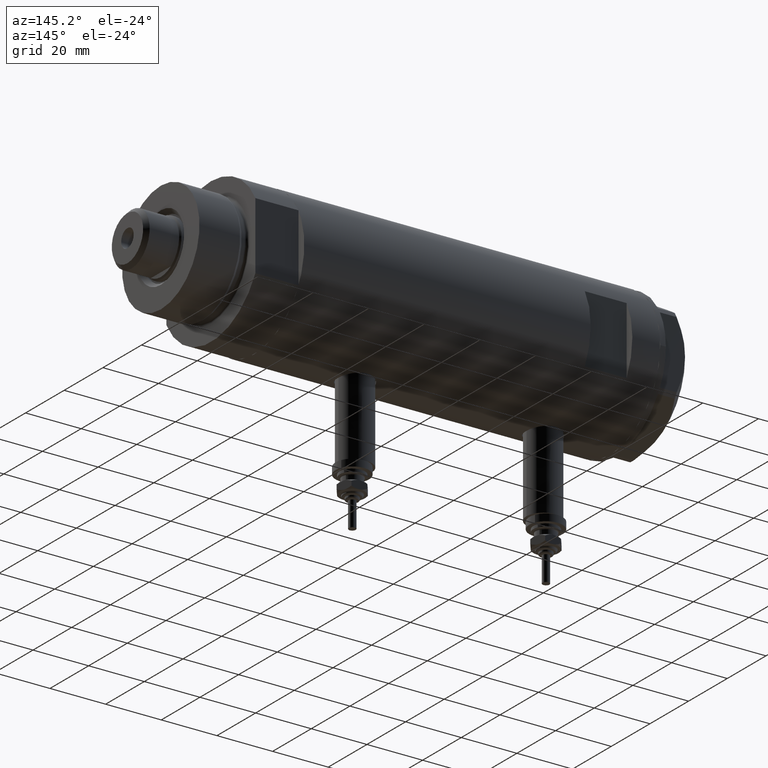
[diagram: clean part render]
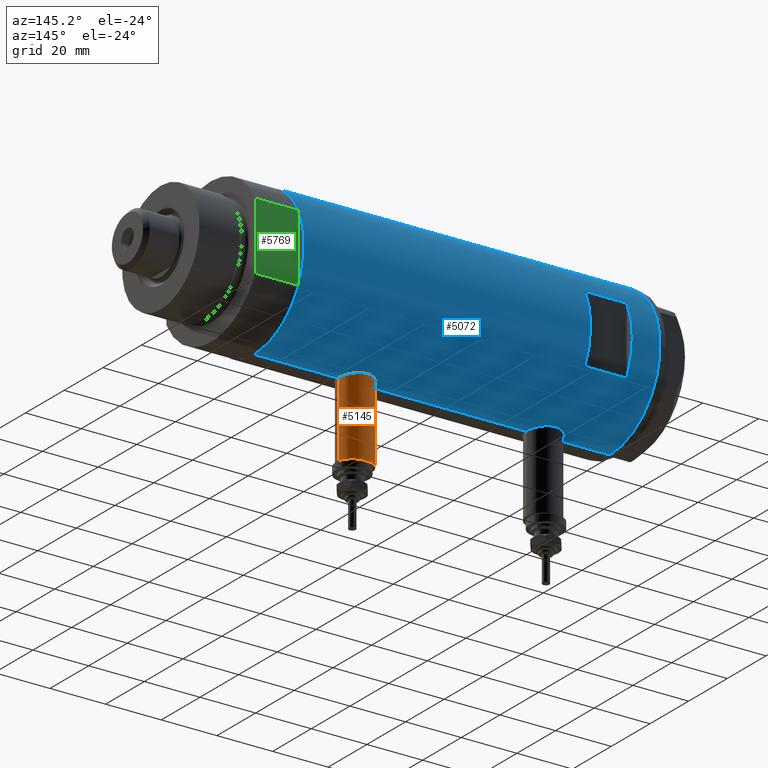
[diagram: same view with three faces highlighted in distinct colors, each labeled with its STEP entity id]
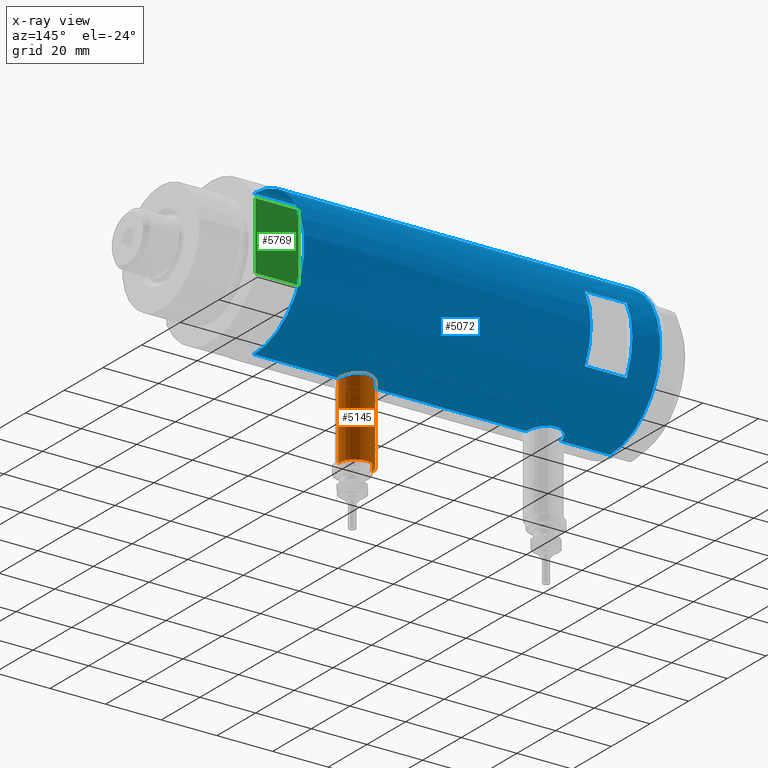
[diagram: x-ray of the same camera — body ghosted, the three highlighted faces saturated]
A machine part, auxiliary view with three faces highlighted in distinct colors.
The next image is the same camera in x-ray (body ghosted, the three faces saturated) — at least one of them is partly hidden behind the body in this view.
Their STEP definitions:

[orange] entity #5145 — the highlighted cylindrical surface (edge-blend (fillet) strip) has radius 6 mm, axis along (0, 0, 1).
#223 = DIRECTION ( 'NONE',  ( 1.000000000000000000, -0.000000000000000000, -0.000000000000000000 ) ) ;
#399 = VERTEX_POINT ( 'NONE', #2388 ) ;
#663 = EDGE_CURVE ( 'NONE', #4606, #4119, #2244, .T. ) ;
#666 = VERTEX_POINT ( 'NONE', #4201 ) ;
#690 = DIRECTION ( 'NONE',  ( 1.000000000000000000, -0.000000000000000000, -0.000000000000000000 ) ) ;
#876 = VECTOR ( 'NONE', #690, 1000.000000000000000 ) ;
#878 = DIRECTION ( 'NONE',  ( 0.000000000000000000, 0.000000000000000000, -1.000000000000000000 ) ) ;
#1023 = ORIENTED_EDGE ( 'NONE', *, *, #663, .T. ) ;
#1032 = CARTESIAN_POINT ( 'NONE',  ( -24.80000000000000426, 0.000000000000000000, -27.65000000000000924 ) ) ;
#1213 = CIRCLE ( 'NONE', #2214, 6.000000000000001776 ) ;
#1474 = CARTESIAN_POINT ( 'NONE',  ( -24.80000000000000426, 7.347880794884123680E-16, -21.65000000000000213 ) ) ;
#1568 = VECTOR ( 'NONE', #223, 1000.000000000000000 ) ;
#1597 = EDGE_CURVE ( 'NONE', #4119, #666, #3397, .T. ) ;
#1676 = ORIENTED_EDGE ( 'NONE', *, *, #3480, .F. ) ;
#1695 = ORIENTED_EDGE ( 'NONE', *, *, #1597, .T. ) ;
#1801 = ORIENTED_EDGE ( 'NONE', *, *, #5708, .F. ) ;
#1873 = CARTESIAN_POINT ( 'NONE',  ( -53.40000000000000568, 0.000000000000000000, -27.65000000000000924 ) ) ;
#1913 = LINE ( 'NONE', #3841, #876 ) ;
#2214 = AXIS2_PLACEMENT_3D ( 'NONE', #1873, #3415, #2961 ) ;
#2244 = LINE ( 'NONE', #5663, #1568 ) ;
#2388 = CARTESIAN_POINT ( 'NONE',  ( -53.40000000000000568, 0.000000000000000000, -33.65000000000001279 ) ) ;
#2449 = CARTESIAN_POINT ( 'NONE',  ( -53.40000000000000568, 7.347880794884123680E-16, -21.65000000000000213 ) ) ;
#2956 = DIRECTION ( 'NONE',  ( -1.000000000000000000, 0.000000000000000000, 0.000000000000000000 ) ) ;
#2961 = DIRECTION ( 'NONE',  ( 0.000000000000000000, 0.000000000000000000, 1.000000000000000000 ) ) ;
#3265 = FACE_OUTER_BOUND ( 'NONE', #5521, .T. ) ;
#3397 = CIRCLE ( 'NONE', #4922, 6.000000000000001776 ) ;
#3415 = DIRECTION ( 'NONE',  ( -1.000000000000000000, 0.000000000000000000, 0.000000000000000000 ) ) ;
#3480 = EDGE_CURVE ( 'NONE', #399, #666, #1913, .T. ) ;
#3841 = CARTESIAN_POINT ( 'NONE',  ( -53.40000000000000568, 0.000000000000000000, -33.65000000000001279 ) ) ;
#4067 = AXIS2_PLACEMENT_3D ( 'NONE', #5702, #5244, #878 ) ;
#4119 = VERTEX_POINT ( 'NONE', #1474 ) ;
#4201 = CARTESIAN_POINT ( 'NONE',  ( -24.80000000000000426, 0.000000000000000000, -33.65000000000001279 ) ) ;
#4606 = VERTEX_POINT ( 'NONE', #2449 ) ;
#4905 = DIRECTION ( 'NONE',  ( 0.000000000000000000, 0.000000000000000000, 1.000000000000000000 ) ) ;
#4922 = AXIS2_PLACEMENT_3D ( 'NONE', #1032, #2956, #4905 ) ;
#5145 = ADVANCED_FACE ( 'NONE', ( #3265 ), #5760, .T. ) ;
#5244 = DIRECTION ( 'NONE',  ( 1.000000000000000000, -0.000000000000000000, -0.000000000000000000 ) ) ;
#5521 = EDGE_LOOP ( 'NONE', ( #1801, #1023, #1695, #1676 ) ) ;
#5663 = CARTESIAN_POINT ( 'NONE',  ( -53.40000000000000568, 7.347880794884122694E-16, -21.65000000000000568 ) ) ;
#5702 = CARTESIAN_POINT ( 'NONE',  ( -53.40000000000000568, 0.000000000000000000, -27.65000000000000924 ) ) ;
#5708 = EDGE_CURVE ( 'NONE', #4606, #399, #1213, .T. ) ;
#5760 = CYLINDRICAL_SURFACE ( 'NONE', #4067, 6.000000000000005329 ) ;

[blue] entity #5072 — the highlighted cylindrical surface (partial cylindrical patch) has radius 26 mm, axis along (-1, -0, 0).
#5 = CARTESIAN_POINT ( 'NONE',  ( -25.99009688862344092, 0.8219492608955323298, 46.15915939226576370 ) ) ;
#17 = CARTESIAN_POINT ( 'NONE',  ( 25.38132706741445332, 5.649034551923782566, -29.70731952814044874 ) ) ;
#43 = CARTESIAN_POINT ( 'NONE',  ( -26.00000000000000355, 3.184077527325983904E-15, -33.90000000000001279 ) ) ;
#78 = DIRECTION ( 'NONE',  ( -1.000000000000000000, -5.329070518200751394E-15, 0.000000000000000000 ) ) ;
#81 = CARTESIAN_POINT ( 'NONE',  ( -25.99759026373432391, 0.4091325989570628874, -33.88999890044899388 ) ) ;
#95 = CARTESIAN_POINT ( 'NONE',  ( -25.24766879991037172, 6.209837761082653174, 40.76849569029695886 ) ) ;
#116 = ORIENTED_EDGE ( 'NONE', *, *, #1956, .F. ) ;
#144 = VERTEX_POINT ( 'NONE', #5836 ) ;
#150 = CARTESIAN_POINT ( 'NONE',  ( -26.00000000000000355, 9.891741702313250758E-16, -21.40000000000000568 ) ) ;
#180 = CARTESIAN_POINT ( 'NONE',  ( -25.36894112891957676, 5.694149517195238097, -30.23482505198309056 ) ) ;
#201 = CARTESIAN_POINT ( 'NONE',  ( 0.000000000000000000, 0.000000000000000000, -63.95000000000000995 ) ) ;
#207 = CARTESIAN_POINT ( 'NONE',  ( -25.85406084573622110, 2.777003695811654183, -22.03587158673905222 ) ) ;
#218 = CARTESIAN_POINT ( 'NONE',  ( -25.99759026373432036, 0.4091325989570642196, 33.71000109955100754 ) ) ;
#231 = FACE_BOUND ( 'NONE', #3866, .T. ) ;
#258 = CARTESIAN_POINT ( 'NONE',  ( 25.20855488770172315, 6.367749707222637667, 48.42002223040957887 ) ) ;
#276 = AXIS2_PLACEMENT_3D ( 'NONE', #1550, #3477, #4951 ) ;
#292 = DIRECTION ( 'NONE',  ( 0.000000000000000000, 0.000000000000000000, 1.000000000000000000 ) ) ;
#317 = CARTESIAN_POINT ( 'NONE',  ( 26.00000000000000355, 0.000000000000000000, -63.95000000000000995 ) ) ;
#324 = DIRECTION ( 'NONE',  ( 0.000000000000000000, 0.000000000000000000, 1.000000000000000000 ) ) ;
#443 = VECTOR ( 'NONE', #999, 1000.000000000000000 ) ;
#470 = CARTESIAN_POINT ( 'NONE',  ( 25.72923282622328855, 3.765147152416742138, -31.25485575784708203 ) ) ;
#483 = CARTESIAN_POINT ( 'NONE',  ( -25.72105193281917224, 3.813738527046911297, 44.91833691099433423 ) ) ;
#496 = CARTESIAN_POINT ( 'NONE',  ( -25.57167265924275412, 4.701795585128873967, -31.77276288310035213 ) ) ;
#497 = CARTESIAN_POINT ( 'NONE',  ( -12.12435565298214080, 23.00000000000000355, 38.94999999999999574 ) ) ;
#505 = CARTESIAN_POINT ( 'NONE',  ( 24.89484527721569052, 7.499778575171893280, -25.24550805482937932 ) ) ;
#558 = ORIENTED_EDGE ( 'NONE', *, *, #2754, .T. ) ;
#631 = CARTESIAN_POINT ( 'NONE',  ( -25.23766275406408965, 6.249830297096024445, -27.23808095444882582 ) ) ;
#648 = DIRECTION ( 'NONE',  ( 0.000000000000000000, 0.000000000000000000, 1.000000000000000000 ) ) ;
#681 = CARTESIAN_POINT ( 'NONE',  ( -25.98057228346870673, 1.024901789261881913, 33.78119414145175625 ) ) ;
#721 = CARTESIAN_POINT ( 'NONE',  ( 25.41763780493359803, 5.474943943663455492, 49.58176313788934664 ) ) ;
#793 = VECTOR ( 'NONE', #5399, 1000.000000000000000 ) ;
#803 = CARTESIAN_POINT ( 'NONE',  ( 12.12435565298214080, 23.00000000000000355, 53.94999999999999574 ) ) ;
#838 = VERTEX_POINT ( 'NONE', #5767 ) ;
#900 = CIRCLE ( 'NONE', #4254, 26.00000000000000355 ) ;
#931 = CARTESIAN_POINT ( 'NONE',  ( 25.30960479024497900, 5.958491152160520166, -29.33139677679963953 ) ) ;
#946 = ORIENTED_EDGE ( 'NONE', *, *, #3525, .F. ) ;
#956 = VERTEX_POINT ( 'NONE', #497 ) ;
#958 = CARTESIAN_POINT ( 'NONE',  ( 26.00000000000001776, 0.4983968644076017251, -32.25000000000001421 ) ) ;
#970 = CARTESIAN_POINT ( 'NONE',  ( 24.90951684770588059, 7.451587374037537792, 43.46604395478804861 ) ) ;
#991 = CARTESIAN_POINT ( 'NONE',  ( 24.90976107960111818, 7.450765568638821890, -23.76117130648535891 ) ) ;
#999 = DIRECTION ( 'NONE',  ( 0.000000000000000000, 0.000000000000000000, 1.000000000000000000 ) ) ;
#1024 = EDGE_CURVE ( 'NONE', #1947, #5714, #3455, .T. ) ;
#1025 = CARTESIAN_POINT ( 'NONE',  ( 25.01140519645288407, 7.101774040639619479, -27.17392235700823733 ) ) ;
#1034 = CARTESIAN_POINT ( 'NONE',  ( -25.57189498399055338, 4.707763994471528157, 44.08090281055548587 ) ) ;
#1035 = VERTEX_POINT ( 'NONE', #4386 ) ;
#1093 = CARTESIAN_POINT ( 'NONE',  ( -25.24784248027030031, 6.209126813737962713, 39.12731838311943022 ) ) ;
#1108 = DIRECTION ( 'NONE',  ( -0.000000000000000000, -0.000000000000000000, -1.000000000000000000 ) ) ;
#1120 = CARTESIAN_POINT ( 'NONE',  ( 25.41763780493360514, 5.474943943663459933, -19.61823686211066686 ) ) ;
#1121 = CARTESIAN_POINT ( 'NONE',  ( -25.42927140605240766, 5.422776733968210472, -24.51556003986717513 ) ) ;
#1129 = CARTESIAN_POINT ( 'NONE',  ( -25.72087293759780380, 3.814831448865741770, 34.98261705172143365 ) ) ;
#1131 = CARTESIAN_POINT ( 'NONE',  ( 25.27545867390325185, 6.096774941222090405, 48.82477406957965371 ) ) ;
#1142 = EDGE_LOOP ( 'NONE', ( #3912, #558, #3761, #2543, #5860, #5295, #946, #116, #4638, #3662, #4941, #4455 ) ) ;
#1153 = CARTESIAN_POINT ( 'NONE',  ( 25.27545867390324830, 6.096774941222096622, -20.37522593042036334 ) ) ;
#1167 = CARTESIAN_POINT ( 'NONE',  ( -25.85449082491264861, 2.772892880050687126, 34.33390702514679305 ) ) ;
#1172 = CARTESIAN_POINT ( 'NONE',  ( 25.52590365620542912, 4.955152228772151446, 50.10123727588237585 ) ) ;
#1204 = CARTESIAN_POINT ( 'NONE',  ( -25.52275868012767646, 4.960454986366448438, 36.14238370593368188 ) ) ;
#1227 = CARTESIAN_POINT ( 'NONE',  ( -25.81251897318926680, 3.135439098787736523, -22.22800821914827907 ) ) ;
#1238 = CARTESIAN_POINT ( 'NONE',  ( -25.81206132723605506, 3.139065735901517495, 34.53021230639124894 ) ) ;
#1243 = CARTESIAN_POINT ( 'NONE',  ( -26.00000000000000355, 9.891741702313250758E-16, -21.40000000000000568 ) ) ;
#1259 = CARTESIAN_POINT ( 'NONE',  ( -26.00000000000000355, 3.184081677783118585E-15, 63.95000000000000995 ) ) ;
#1278 = CARTESIAN_POINT ( 'NONE',  ( 26.00000000000000355, 0.4983968644076020582, 36.95000000000000284 ) ) ;
#1392 = VECTOR ( 'NONE', #292, 1000.000000000000000 ) ;
#1415 = CARTESIAN_POINT ( 'NONE',  ( 25.11254978876590016, 6.737777305585156640, -28.08025351746412213 ) ) ;
#1452 = CARTESIAN_POINT ( 'NONE',  ( -25.92257874449351007, 2.014648337067150408, 45.86996418363678174 ) ) ;
#1470 = CARTESIAN_POINT ( 'NONE',  ( 24.90951684770588415, 7.451587374037533351, -25.73395604521198621 ) ) ;
#1482 = CARTESIAN_POINT ( 'NONE',  ( -25.33346170681504717, 5.849967696906719361, 42.15947052099510017 ) ) ;
#1501 = CARTESIAN_POINT ( 'NONE',  ( 25.11550258961939619, 6.725017566862034002, -21.42071522193981181 ) ) ;
#1550 = CARTESIAN_POINT ( 'NONE',  ( 0.000000000000000000, 0.000000000000000000, -63.95000000000000995 ) ) ;
#1561 = CARTESIAN_POINT ( 'NONE',  ( 25.31017500740586357, 5.951503630041866444, -20.17950407362598853 ) ) ;
#1586 = VECTOR ( 'NONE', #648, 1000.000000000000000 ) ;
#1611 = CARTESIAN_POINT ( 'NONE',  ( 25.11550258961939974, 6.725017566862028673, 47.77928477806020169 ) ) ;
#1628 = CARTESIAN_POINT ( 'NONE',  ( 25.92799636947105313, 1.948138538329398317, 37.20322312211785487 ) ) ;
#1638 = CARTESIAN_POINT ( 'NONE',  ( -25.67095236150574067, 4.133649689219789813, -22.94464771725742125 ) ) ;
#1649 = CARTESIAN_POINT ( 'NONE',  ( -25.36894112891956965, 5.694149517195234544, 37.36517494801692862 ) ) ;
#1650 = CARTESIAN_POINT ( 'NONE',  ( 25.97197502027376004, 1.230965554787593952, 51.85240824498373513 ) ) ;
#1670 = CARTESIAN_POINT ( 'NONE',  ( -25.49884629689154636, 5.081547904122037274, -31.29439805696091526 ) ) ;
#1678 = EDGE_CURVE ( 'NONE', #3145, #1035, #4903, .T. ) ;
#1691 = DIRECTION ( 'NONE',  ( 0.000000000000000000, 0.000000000000000000, 1.000000000000000000 ) ) ;
#1699 = CARTESIAN_POINT ( 'NONE',  ( 26.00000000000001066, 0.2455784580650491045, -17.25000000000000355 ) ) ;
#1700 = CARTESIAN_POINT ( 'NONE',  ( -25.72105193281916513, 3.813738527046907745, -22.68166308900567785 ) ) ;
#1716 = DIRECTION ( 'NONE',  ( 0.000000000000000000, 0.000000000000000000, 1.000000000000000000 ) ) ;
#1759 = DIRECTION ( 'NONE',  ( 1.000000000000000000, 0.000000000000000000, 0.000000000000000000 ) ) ;
#1910 = CARTESIAN_POINT ( 'NONE',  ( 0.000000000000000000, 0.000000000000000000, 53.94999999999999574 ) ) ;
#1921 = LINE ( 'NONE', #2856, #3526 ) ;
#1947 = VERTEX_POINT ( 'NONE', #803 ) ;
#1956 = EDGE_CURVE ( 'NONE', #4811, #4112, #2792, .T. ) ;
#1976 = VERTEX_POINT ( 'NONE', #1259 ) ;
#1980 = CARTESIAN_POINT ( 'NONE',  ( 25.00820649268565532, 7.115348876445588111, -22.32815999524549611 ) ) ;
#2008 = CARTESIAN_POINT ( 'NONE',  ( 25.92799636947105668, 1.948138538329396319, -31.99677687788214797 ) ) ;
#2023 = CARTESIAN_POINT ( 'NONE',  ( 24.95233689475078975, 7.306396477445178839, 42.73896186853335877 ) ) ;
#2024 = B_SPLINE_CURVE_WITH_KNOTS ( 'NONE', 3,
 ( #3581, #1278, #3169, #5981, #1628, #3200, #6084, #3552, #5542, #5612, #6046, #4691, #5936, #4376, #6299, #5820, #2446, #3380, #5335, #5881, #2023, #970, #3020, #5005, #2113, #4028, #6010, #5536, #1611, #5083, #258, #1131, #5972, #3541, #721, #1172, #2613, #2140, #4128, #4977, #6074, #1650, #5463, #4537, #2645, #5603 ),
 .UNSPECIFIED., .F., .F.,
 ( 4, 2, 2, 2, 2, 2, 2, 2, 2, 2, 2, 2, 2, 2, 2, 2, 2, 2, 2, 2, 2, 2, 4 ),
 ( 2.323866739619147150E-19, 0.001473395154583068958, 0.002210092731874605497, 0.002946790309166141819, 0.004420185463749206657, 0.005156883041040739510, 0.005893580618332274097, 0.007366975772915325057, 0.008840370927498376885, 0.009577068504789901932, 0.01031376608208142698, 0.01178716123666447707, 0.01326055639124752716, 0.01473395154583057726, 0.01547064912312210404, 0.01620734670041363082, 0.01694404427770515587, 0.01768074185499668438, 0.01915413700957973447, 0.02062753216416278457, 0.02210092731874583813, 0.02283762489603735971, 0.02357432247332888128 ),
 .UNSPECIFIED. ) ;
#2042 = CARTESIAN_POINT ( 'NONE',  ( 26.00000000000000355, -3.975025925197986111E-20, -17.25000000000000000 ) ) ;
#2113 = CARTESIAN_POINT ( 'NONE',  ( 24.90976107960111818, 7.450765568638821890, 45.43882869351466525 ) ) ;
#2123 = DIRECTION ( 'NONE',  ( 1.000000000000000000, 0.000000000000000000, 0.000000000000000000 ) ) ;
#2140 = CARTESIAN_POINT ( 'NONE',  ( 25.72868876879096689, 3.768709330223694920, 50.95267486870066165 ) ) ;
#2178 = EDGE_CURVE ( 'NONE', #2638, #838, #4185, .T. ) ;
#2238 = CARTESIAN_POINT ( 'NONE',  ( -25.45277932469921822, 5.307477387851097461, 36.64327199834690418 ) ) ;
#2255 = EDGE_CURVE ( 'NONE', #4844, #4811, #2024, .T. ) ;
#2301 = CARTESIAN_POINT ( 'NONE',  ( 26.00000000000000355, -3.975025925197986111E-20, 51.95000000000000284 ) ) ;
#2320 = AXIS2_PLACEMENT_3D ( 'NONE', #201, #1691, #2123 ) ;
#2405 = CARTESIAN_POINT ( 'NONE',  ( 25.48882460966380492, 5.133289275481214275, -30.22343523597908188 ) ) ;
#2426 = CARTESIAN_POINT ( 'NONE',  ( -25.59680708126580129, 4.563450671387943025, -31.92543949979970108 ) ) ;
#2431 = VERTEX_POINT ( 'NONE', #2864 ) ;
#2441 = CARTESIAN_POINT ( 'NONE',  ( -25.23766275406409321, 6.249830297096026221, 40.36191904555118271 ) ) ;
#2446 = CARTESIAN_POINT ( 'NONE',  ( 25.11254978876589661, 6.737777305585160192, 41.11974648253589493 ) ) ;
#2485 = CIRCLE ( 'NONE', #2989, 26.00000000000000355 ) ;
#2491 = CARTESIAN_POINT ( 'NONE',  ( -25.95208098418916975, 1.628413954368980843, -33.69806792170715681 ) ) ;
#2513 = CARTESIAN_POINT ( 'NONE',  ( -25.27696731428695998, 6.089059008147561514, 41.37416306959482881 ) ) ;
#2525 = CARTESIAN_POINT ( 'NONE',  ( -25.72087293759780735, 3.814831448865741326, -32.61738294827859619 ) ) ;
#2533 = CARTESIAN_POINT ( 'NONE',  ( -25.27696731428695642, 6.089059008147562402, -26.22583693040519037 ) ) ;
#2543 = ORIENTED_EDGE ( 'NONE', *, *, #6127, .T. ) ;
#2554 = EDGE_CURVE ( 'NONE', #6316, #4844, #3125, .T. ) ;
#2566 = CARTESIAN_POINT ( 'NONE',  ( -25.28915991580759837, 6.038390257328908994, -26.02447348853095122 ) ) ;
#2597 = CARTESIAN_POINT ( 'NONE',  ( -26.00000000000000711, 0.4145874687851189844, -21.40000000000000924 ) ) ;
#2609 = CARTESIAN_POINT ( 'NONE',  ( -25.98789693408479451, 0.8193301824841956460, 33.75051019734654290 ) ) ;
#2613 = CARTESIAN_POINT ( 'NONE',  ( 25.59685363299823280, 4.579266302355747165, 50.40972068102655612 ) ) ;
#2634 = CARTESIAN_POINT ( 'NONE',  ( -25.92257874449350297, 2.014648337067150408, -21.73003581636323389 ) ) ;
#2638 = VERTEX_POINT ( 'NONE', #1243 ) ;
#2643 = CARTESIAN_POINT ( 'NONE',  ( -25.31518616157687163, 5.930210831981637121, 37.93412882792974727 ) ) ;
#2645 = CARTESIAN_POINT ( 'NONE',  ( 25.99999999999999645, 0.2455784580650500204, 51.94999999999998863 ) ) ;
#2659 = CARTESIAN_POINT ( 'NONE',  ( 25.59685363299822569, 4.579266302355748053, -18.79027931897347514 ) ) ;
#2673 = CARTESIAN_POINT ( 'NONE',  ( -25.99999999999999289, 0.2043916521039015888, 33.70000000000000284 ) ) ;
#2705 = CARTESIAN_POINT ( 'NONE',  ( -25.28673619335055278, 6.048783215285168602, 38.32449009651820404 ) ) ;
#2749 = ORIENTED_EDGE ( 'NONE', *, *, #1024, .F. ) ;
#2754 = EDGE_CURVE ( 'NONE', #2431, #838, #5782, .T. ) ;
#2778 = ORIENTED_EDGE ( 'NONE', *, *, #5509, .F. ) ;
#2792 = LINE ( 'NONE', #317, #5031 ) ;
#2856 = CARTESIAN_POINT ( 'NONE',  ( -12.12435565298214080, 23.00000000000000355, -63.95000000000000995 ) ) ;
#2864 = CARTESIAN_POINT ( 'NONE',  ( -26.00000000000000355, 3.184081677783118585E-15, -63.95000000000000995 ) ) ;
#2898 = CARTESIAN_POINT ( 'NONE',  ( -25.85406084573620689, 2.777003695811653738, 45.56412841326093854 ) ) ;
#2919 = CARTESIAN_POINT ( 'NONE',  ( 24.96662810169869218, 7.257932614256870529, -22.79702690473265392 ) ) ;
#2929 = CARTESIAN_POINT ( 'NONE',  ( -25.90661719257679252, 2.209805098346976138, 45.79988745781523107 ) ) ;
#2949 = CARTESIAN_POINT ( 'NONE',  ( 25.17636585680006078, 6.493453152855879651, -20.98900750337198318 ) ) ;
#2958 = CARTESIAN_POINT ( 'NONE',  ( -25.31738333113901973, 5.918941409682879851, 41.96757922472325220 ) ) ;
#2984 = CARTESIAN_POINT ( 'NONE',  ( -25.28915991580759837, 6.038390257328908106, 41.57552651146907863 ) ) ;
#2989 = AXIS2_PLACEMENT_3D ( 'NONE', #6080, #324, #1759 ) ;
#3001 = CARTESIAN_POINT ( 'NONE',  ( 25.89067367629245808, 2.424883365422559223, -17.63594795494831402 ) ) ;
#3002 = CARTESIAN_POINT ( 'NONE',  ( -25.52242378584899640, 4.965907353613392416, -23.83280397078263491 ) ) ;
#3014 = CARTESIAN_POINT ( 'NONE',  ( -25.81251897318925614, 3.135439098787738743, 45.37199178085171525 ) ) ;
#3020 = CARTESIAN_POINT ( 'NONE',  ( 24.89484527721569762, 7.499778575171895945, 43.95449194517064484 ) ) ;
#3028 = CARTESIAN_POINT ( 'NONE',  ( -25.81206132723605151, 3.139065735901513943, -33.06978769360876669 ) ) ;
#3040 = CARTESIAN_POINT ( 'NONE',  ( 25.20855488770173380, 6.367749707222643885, -20.77997776959044174 ) ) ;
#3041 = CARTESIAN_POINT ( 'NONE',  ( -25.24766879991036816, 6.209837761082655838, -26.83150430970304257 ) ) ;
#3052 = CARTESIAN_POINT ( 'NONE',  ( -25.57167265924276123, 4.701795585128874855, 35.82723711689968837 ) ) ;
#3073 = CARTESIAN_POINT ( 'NONE',  ( 25.93077501166307641, 1.957027822413550888, -17.49302141437590663 ) ) ;
#3125 = LINE ( 'NONE', #3573, #1586 ) ;
#3145 = VERTEX_POINT ( 'NONE', #5278 ) ;
#3148 = CARTESIAN_POINT ( 'NONE',  ( -25.57189498399056049, 4.707763994471527269, -23.51909718944452976 ) ) ;
#3169 = CARTESIAN_POINT ( 'NONE',  ( 25.98569222077104257, 0.9879514382926377625, 36.99918153312438562 ) ) ;
#3200 = CARTESIAN_POINT ( 'NONE',  ( 25.88814720404043257, 2.420758939209243898, 37.34711713171546421 ) ) ;
#3286 = CARTESIAN_POINT ( 'NONE',  ( 26.00000000000000355, 2.393127611988522640E-16, 36.95000000000000284 ) ) ;
#3358 = DIRECTION ( 'NONE',  ( 1.000000000000000000, -5.329070518200751394E-15, 0.000000000000000000 ) ) ;
#3380 = CARTESIAN_POINT ( 'NONE',  ( 25.03487248886524696, 7.018875226450792759, 41.79576782607938412 ) ) ;
#3388 = CARTESIAN_POINT ( 'NONE',  ( -25.99999999999999289, 0.2043916521039002843, -33.90000000000000568 ) ) ;
#3399 = CARTESIAN_POINT ( 'NONE',  ( 25.94484652078418208, 1.709678645892019899, -32.05665346759175804 ) ) ;
#3421 = CARTESIAN_POINT ( 'NONE',  ( -25.92432690655986960, 2.018143994254072648, -33.57929422822715537 ) ) ;
#3434 = CARTESIAN_POINT ( 'NONE',  ( 25.52465069878074999, 4.952713637311402906, -30.38744860815256388 ) ) ;
#3454 = CARTESIAN_POINT ( 'NONE',  ( 0.000000000000000000, 0.000000000000000000, 38.94999999999999574 ) ) ;
#3455 = LINE ( 'NONE', #3512, #3591 ) ;
#3477 = DIRECTION ( 'NONE',  ( 0.000000000000000000, 0.000000000000000000, 1.000000000000000000 ) ) ;
#3512 = CARTESIAN_POINT ( 'NONE',  ( 12.12435565298214080, 23.00000000000000355, -63.95000000000000995 ) ) ;
#3525 = EDGE_CURVE ( 'NONE', #4112, #1976, #2485, .T. ) ;
#3526 = VECTOR ( 'NONE', #4807, 1000.000000000000000 ) ;
#3533 = LINE ( 'NONE', #5424, #793 ) ;
#3541 = CARTESIAN_POINT ( 'NONE',  ( 25.38117076385347914, 5.641057083563588925, 49.39856579741849174 ) ) ;
#3552 = CARTESIAN_POINT ( 'NONE',  ( 25.78922176490237561, 3.335318700939509107, 37.71449431233524052 ) ) ;
#3559 = ORIENTED_EDGE ( 'NONE', *, *, #4030, .F. ) ;
#3561 = CARTESIAN_POINT ( 'NONE',  ( 25.78997056644824681, 3.329333406239041615, -18.01165191566153823 ) ) ;
#3562 = CARTESIAN_POINT ( 'NONE',  ( -25.43062364804612230, 5.412314182902756343, -30.78227648580932652 ) ) ;
#3573 = CARTESIAN_POINT ( 'NONE',  ( 26.00000000000000355, 0.000000000000000000, -63.95000000000000995 ) ) ;
#3581 = CARTESIAN_POINT ( 'NONE',  ( 26.00000000000000355, 2.393127611988522640E-16, 36.95000000000000284 ) ) ;
#3591 = VECTOR ( 'NONE', #1108, 1000.000000000000000 ) ;
#3602 = LINE ( 'NONE', #5084, #3934 ) ;
#3623 = CARTESIAN_POINT ( 'NONE',  ( -25.38675822915648084, 5.615881323213569587, -24.87693218337989975 ) ) ;
#3662 = ORIENTED_EDGE ( 'NONE', *, *, #2554, .F. ) ;
#3722 = DIRECTION ( 'NONE',  ( 0.000000000000000000, 0.000000000000000000, 1.000000000000000000 ) ) ;
#3761 = ORIENTED_EDGE ( 'NONE', *, *, #2178, .F. ) ;
#3812 = CARTESIAN_POINT ( 'NONE',  ( 25.59528664075984139, 4.573671112500301561, -30.69909503516727156 ) ) ;
#3847 = CARTESIAN_POINT ( 'NONE',  ( 25.78922176490238627, 3.335318700939508663, -31.48550568766476232 ) ) ;
#3866 = EDGE_LOOP ( 'NONE', ( #3559, #2749, #2778, #4488 ) ) ;
#3904 = CARTESIAN_POINT ( 'NONE',  ( 25.08669247833292104, 6.831361936037323446, -21.64462260596211252 ) ) ;
#3912 = ORIENTED_EDGE ( 'NONE', *, *, #4056, .T. ) ;
#3925 = CARTESIAN_POINT ( 'NONE',  ( 12.12435565298213724, 23.00000000000000355, 38.94999999999999574 ) ) ;
#3934 = VECTOR ( 'NONE', #1716, 1000.000000000000000 ) ;
#3941 = CARTESIAN_POINT ( 'NONE',  ( 26.00000000000000355, 6.604469597105595072E-16, -32.25000000000000000 ) ) ;
#3954 = CARTESIAN_POINT ( 'NONE',  ( -25.42927140605241121, 5.422776733968213136, 43.08443996013281918 ) ) ;
#3969 = CARTESIAN_POINT ( 'NONE',  ( -25.85449082491264861, 2.772892880050691122, -33.26609297485325101 ) ) ;
#3988 = CARTESIAN_POINT ( 'NONE',  ( -25.23757896588370286, 6.250168635417627350, 39.54324691589501128 ) ) ;
#4028 = CARTESIAN_POINT ( 'NONE',  ( 24.96662810169870284, 7.257932614256869641, 46.40297309526737024 ) ) ;
#4030 = EDGE_CURVE ( 'NONE', #5714, #956, #4842, .T. ) ;
#4050 = CARTESIAN_POINT ( 'NONE',  ( -25.38875076695535782, 5.605452563035137281, -30.42185900824106426 ) ) ;
#4056 = EDGE_CURVE ( 'NONE', #3145, #2431, #5883, .T. ) ;
#4063 = CARTESIAN_POINT ( 'NONE',  ( -25.38875076695534716, 5.605452563035134617, 37.17814099175895848 ) ) ;
#4086 = CARTESIAN_POINT ( 'NONE',  ( -25.45277932469921467, 5.307477387851098349, -30.95672800165311500 ) ) ;
#4093 = CARTESIAN_POINT ( 'NONE',  ( -25.43062364804612230, 5.412314182902753679, 36.81772351419071043 ) ) ;
#4112 = VERTEX_POINT ( 'NONE', #6107 ) ;
#4113 = CARTESIAN_POINT ( 'NONE',  ( 25.97197502027376004, 1.230965554787594396, -17.34759175501625350 ) ) ;
#4115 = CARTESIAN_POINT ( 'NONE',  ( -25.96182217530153480, 1.422664245316465736, -21.56064726907610307 ) ) ;
#4128 = CARTESIAN_POINT ( 'NONE',  ( 25.78997056644825392, 3.329333406239039839, 51.18834808433847883 ) ) ;
#4159 = CARTESIAN_POINT ( 'NONE',  ( -25.92432690655986960, 2.018143994254070872, 34.02070577177285315 ) ) ;
#4185 = B_SPLINE_CURVE_WITH_KNOTS ( 'NONE', 3,
 ( #150, #2597, #4491, #4115, #5995, #2634, #6059, #207, #1227, #1700, #1638, #3148, #3002, #1121, #3623, #5487, #5026, #2566, #2533, #3041, #631, #4995, #5585, #5095, #4524, #180, #4050, #3562, #4086, #1670, #4448, #496, #2426, #4385, #2525, #3028, #3969, #3421, #2491, #5825, #4482, #81, #3388, #43 ),
 .UNSPECIFIED., .F., .F.,
 ( 4, 2, 2, 2, 2, 2, 2, 2, 2, 2, 2, 2, 2, 2, 2, 2, 2, 2, 2, 2, 2, 4 ),
 ( 9.607684875373755967E-19, 0.001225774033668407042, 0.001838661050502609588, 0.002451548067336812350, 0.003677322101005213971, 0.004903096134673616026, 0.006128870168342016346, 0.007354644202010416666, 0.007967531218844617694, 0.008580418235678816119, 0.009806192269347225113, 0.01103196630301563584, 0.01225774033668404484, 0.01287062735351825020, 0.01348351437035245383, 0.01409640138718665919, 0.01470928840402086456, 0.01593506243768925273, 0.01716083647135764612, 0.01838661050502603603, 0.01899949752186023272, 0.01961238453869442941 ),
 .UNSPECIFIED. ) ;
#4254 = AXIS2_PLACEMENT_3D ( 'NONE', #1910, #5801, #3358 ) ;
#4284 = EDGE_CURVE ( 'NONE', #4359, #4701, #5827, .T. ) ;
#4359 = VERTEX_POINT ( 'NONE', #5322 ) ;
#4376 = CARTESIAN_POINT ( 'NONE',  ( 25.38132706741445688, 5.649034551923787895, 39.49268047185955766 ) ) ;
#4385 = CARTESIAN_POINT ( 'NONE',  ( -25.67176285215958842, 4.128807479817787396, -32.35991598451124673 ) ) ;
#4386 = CARTESIAN_POINT ( 'NONE',  ( 26.00000000000000355, 6.604469597105595072E-16, -32.25000000000000000 ) ) ;
#4391 = CARTESIAN_POINT ( 'NONE',  ( 25.98569222077105323, 0.9879514382926379845, -32.20081846687561722 ) ) ;
#4422 = CARTESIAN_POINT ( 'NONE',  ( 25.17424625143662809, 6.506691718592095164, -28.51241626033727528 ) ) ;
#4448 = CARTESIAN_POINT ( 'NONE',  ( -25.52275868012767646, 4.960454986366448438, -31.45761629406634086 ) ) ;
#4455 = ORIENTED_EDGE ( 'NONE', *, *, #1678, .F. ) ;
#4482 = CARTESIAN_POINT ( 'NONE',  ( -25.98789693408478740, 0.8193301824841957570, -33.84948980265347274 ) ) ;
#4488 = ORIENTED_EDGE ( 'NONE', *, *, #6090, .F. ) ;
#4490 = CARTESIAN_POINT ( 'NONE',  ( 25.98255381630415783, 0.9836221648041323373, -17.31066901941807501 ) ) ;
#4491 = CARTESIAN_POINT ( 'NONE',  ( -25.99009688862344092, 0.8219492608955333290, -21.44084060773424838 ) ) ;
#4523 = CARTESIAN_POINT ( 'NONE',  ( 25.52590365620542556, 4.955152228772148781, -19.09876272411762343 ) ) ;
#4524 = CARTESIAN_POINT ( 'NONE',  ( -25.31518616157687873, 5.930210831981640673, -29.66587117207026836 ) ) ;
#4537 = CARTESIAN_POINT ( 'NONE',  ( 25.99652140603931016, 0.4914164889130518965, 51.93796820480458365 ) ) ;
#4549 = FACE_OUTER_BOUND ( 'NONE', #1142, .T. ) ;
#4558 = CARTESIAN_POINT ( 'NONE',  ( 25.72868876879096689, 3.768709330223691811, -18.24732513129934830 ) ) ;
#4566 = CARTESIAN_POINT ( 'NONE',  ( -25.59680708126580129, 4.563450671387941249, 35.67456050020032166 ) ) ;
#4605 = CYLINDRICAL_SURFACE ( 'NONE', #2320, 26.00000000000000355 ) ;
#4638 = ORIENTED_EDGE ( 'NONE', *, *, #2255, .F. ) ;
#4656 = CARTESIAN_POINT ( 'NONE',  ( -26.00000000000000355, 3.184081677783118585E-15, -63.95000000000000995 ) ) ;
#4691 = CARTESIAN_POINT ( 'NONE',  ( 25.52465069878074644, 4.952713637311401129, 38.81255139184744962 ) ) ;
#4701 = VERTEX_POINT ( 'NONE', #5341 ) ;
#4804 = CARTESIAN_POINT ( 'NONE',  ( 25.03487248886524341, 7.018875226450789206, -27.40423217392064359 ) ) ;
#4807 = DIRECTION ( 'NONE',  ( 0.000000000000000000, 0.000000000000000000, 1.000000000000000000 ) ) ;
#4810 = CARTESIAN_POINT ( 'NONE',  ( 26.00000000000000355, 0.000000000000000000, -63.95000000000000995 ) ) ;
#4811 = VERTEX_POINT ( 'NONE', #2301 ) ;
#4842 = CIRCLE ( 'NONE', #5675, 26.00000000000000355 ) ;
#4844 = VERTEX_POINT ( 'NONE', #3286 ) ;
#4866 = CARTESIAN_POINT ( 'NONE',  ( 24.95233689475078265, 7.306396477445174398, -26.46103813146666184 ) ) ;
#4895 = B_SPLINE_CURVE_WITH_KNOTS ( 'NONE', 3,
 ( #3941, #958, #4391, #3399, #2008, #5863, #6283, #3847, #470, #5898, #3812, #3434, #2405, #17, #931, #4422, #1415, #4804, #1025, #6320, #4866, #1470, #505, #5356, #991, #2919, #1980, #3904, #1501, #2949, #3040, #1153, #1561, #5525, #1120, #4523, #2659, #4558, #3561, #3001, #3073, #4113, #4490, #5025, #1699, #2042 ),
 .UNSPECIFIED., .F., .F.,
 ( 4, 2, 2, 2, 2, 2, 2, 2, 2, 2, 2, 2, 2, 2, 2, 2, 2, 2, 2, 2, 2, 2, 4 ),
 ( 6.413325872240687501E-19, 0.001473395154583055080, 0.002210092731874579910, 0.002946790309166104523, 0.004420185463749155483, 0.005156883041040686601, 0.005893580618332217719, 0.007366975772915269546, 0.008840370927498323109, 0.009577068504789844686, 0.01031376608208136626, 0.01178716123666441982, 0.01326055639124747165, 0.01473395154583052175, 0.01547064912312205720, 0.01620734670041358919, 0.01694404427770512117, 0.01768074185499665316, 0.01915413700957970325, 0.02062753216416275681, 0.02210092731874581037, 0.02283762489603733542, 0.02357432247332886047 ),
 .UNSPECIFIED. ) ;
#4903 = LINE ( 'NONE', #4810, #443 ) ;
#4941 = ORIENTED_EDGE ( 'NONE', *, *, #5303, .F. ) ;
#4951 = DIRECTION ( 'NONE',  ( 1.000000000000000000, 0.000000000000000000, 0.000000000000000000 ) ) ;
#4977 = CARTESIAN_POINT ( 'NONE',  ( 25.89067367629246164, 2.424883365422555670, 51.56405204505168172 ) ) ;
#4995 = CARTESIAN_POINT ( 'NONE',  ( -25.23757896588370642, 6.250168635417626462, -28.05675308410501501 ) ) ;
#5005 = CARTESIAN_POINT ( 'NONE',  ( 24.89471231507667071, 7.500219916954787180, 44.93878226883029470 ) ) ;
#5025 = CARTESIAN_POINT ( 'NONE',  ( 25.99652140603931727, 0.4914164889130551717, -17.26203179519542630 ) ) ;
#5026 = CARTESIAN_POINT ( 'NONE',  ( -25.31738333113901263, 5.918941409682878962, -25.63242077527679186 ) ) ;
#5031 = VECTOR ( 'NONE', #3722, 1000.000000000000000 ) ;
#5040 = CARTESIAN_POINT ( 'NONE',  ( -25.95208098418916620, 1.628413954368980399, 33.90193207829285882 ) ) ;
#5072 = ADVANCED_FACE ( 'NONE', ( #231, #4549 ), #4605, .T. ) ;
#5078 = CARTESIAN_POINT ( 'NONE',  ( -25.67176285215957421, 4.128807479817785620, 35.24008401548878311 ) ) ;
#5083 = CARTESIAN_POINT ( 'NONE',  ( 25.17636585680005368, 6.493453152855872546, 48.21099249662804453 ) ) ;
#5084 = CARTESIAN_POINT ( 'NONE',  ( -26.00000000000000355, 3.184081677783118585E-15, -63.95000000000000995 ) ) ;
#5095 = CARTESIAN_POINT ( 'NONE',  ( -25.28673619335055633, 6.048783215285168602, -29.27550990348179027 ) ) ;
#5149 = CARTESIAN_POINT ( 'NONE',  ( -25.95015815577423268, 1.621168830448741938, 45.98958570439819482 ) ) ;
#5278 = CARTESIAN_POINT ( 'NONE',  ( 26.00000000000000355, 0.000000000000000000, -63.95000000000000995 ) ) ;
#5295 = ORIENTED_EDGE ( 'NONE', *, *, #5526, .T. ) ;
#5303 = EDGE_CURVE ( 'NONE', #1035, #6316, #4895, .T. ) ;
#5322 = CARTESIAN_POINT ( 'NONE',  ( -26.00000000000000355, -2.813058302341337106E-16, 46.20000000000000284 ) ) ;
#5335 = CARTESIAN_POINT ( 'NONE',  ( 25.01140519645289828, 7.101774040639625696, 42.02607764299177973 ) ) ;
#5341 = CARTESIAN_POINT ( 'NONE',  ( -26.00000000000000355, 3.184077527313362130E-15, 33.70000000000000995 ) ) ;
#5356 = CARTESIAN_POINT ( 'NONE',  ( 24.89471231507667426, 7.500219916954788957, -24.26121773116972236 ) ) ;
#5376 = DIRECTION ( 'NONE',  ( -0.000000000000000000, -0.000000000000000000, 1.000000000000000000 ) ) ;
#5383 = CARTESIAN_POINT ( 'NONE',  ( -25.52242378584899285, 4.965907353613394193, 43.76719602921738783 ) ) ;
#5399 = DIRECTION ( 'NONE',  ( 0.000000000000000000, 0.000000000000000000, 1.000000000000000000 ) ) ;
#5424 = CARTESIAN_POINT ( 'NONE',  ( -26.00000000000000355, 3.184081677783118585E-15, -63.95000000000000995 ) ) ;
#5460 = CARTESIAN_POINT ( 'NONE',  ( -25.67095236150574067, 4.133649689219791590, 44.65535228274259083 ) ) ;
#5463 = CARTESIAN_POINT ( 'NONE',  ( 25.98255381630415428, 0.9836221648041301169, 51.88933098058191007 ) ) ;
#5487 = CARTESIAN_POINT ( 'NONE',  ( -25.33346170681503651, 5.849967696906715808, -25.44052947900492967 ) ) ;
#5509 = EDGE_CURVE ( 'NONE', #144, #1947, #900, .T. ) ;
#5525 = CARTESIAN_POINT ( 'NONE',  ( 25.38117076385348270, 5.641057083563593366, -19.80143420258153242 ) ) ;
#5526 = EDGE_CURVE ( 'NONE', #4359, #1976, #3602, .T. ) ;
#5536 = CARTESIAN_POINT ( 'NONE',  ( 25.08669247833291394, 6.831361936037319893, 47.55537739403791164 ) ) ;
#5542 = CARTESIAN_POINT ( 'NONE',  ( 25.72923282622329211, 3.765147152416744802, 37.94514424215291371 ) ) ;
#5585 = CARTESIAN_POINT ( 'NONE',  ( -25.24784248027029676, 6.209126813737964490, -28.47268161688059962 ) ) ;
#5591 = CARTESIAN_POINT ( 'NONE',  ( -26.00000000000000355, -2.813058302341337106E-16, 46.20000000000000284 ) ) ;
#5600 = CARTESIAN_POINT ( 'NONE',  ( -25.49884629689154281, 5.081547904122033721, 36.30560194303910748 ) ) ;
#5603 = CARTESIAN_POINT ( 'NONE',  ( 26.00000000000000355, -3.975025925197986111E-20, 51.95000000000000284 ) ) ;
#5612 = CARTESIAN_POINT ( 'NONE',  ( 25.63006864069250668, 4.375159448492148329, 38.35345588241117554 ) ) ;
#5675 = AXIS2_PLACEMENT_3D ( 'NONE', #3454, #5376, #78 ) ;
#5714 = VERTEX_POINT ( 'NONE', #3925 ) ;
#5767 = CARTESIAN_POINT ( 'NONE',  ( -26.00000000000000355, 3.184077527325983904E-15, -33.90000000000001279 ) ) ;
#5782 = LINE ( 'NONE', #4656, #1392 ) ;
#5801 = DIRECTION ( 'NONE',  ( -0.000000000000000000, -0.000000000000000000, -1.000000000000000000 ) ) ;
#5820 = CARTESIAN_POINT ( 'NONE',  ( 25.17424625143662453, 6.506691718592097828, 40.68758373966274178 ) ) ;
#5825 = CARTESIAN_POINT ( 'NONE',  ( -25.98057228346869252, 1.024901789261879914, -33.81880585854828070 ) ) ;
#5827 = B_SPLINE_CURVE_WITH_KNOTS ( 'NONE', 3,
 ( #5591, #6223, #5, #5854, #5149, #1452, #2929, #2898, #3014, #483, #5460, #1034, #5383, #3954, #5841, #1482, #2958, #2984, #2513, #95, #2441, #3988, #1093, #2705, #2643, #1649, #4063, #4093, #2238, #5600, #1204, #3052, #4566, #5078, #1129, #1238, #1167, #4159, #5040, #681, #2609, #218, #2673, #6070 ),
 .UNSPECIFIED., .F., .F.,
 ( 4, 2, 2, 2, 2, 2, 2, 2, 2, 2, 2, 2, 2, 2, 2, 2, 2, 2, 2, 2, 2, 4 ),
 ( 2.732276935479321607E-19, 0.001225774033668403139, 0.001838661050502602649, 0.002451548067336802375, 0.003677322101005202262, 0.004903096134673601281, 0.006128870168342001601, 0.007354644202010401054, 0.007967531218844600346, 0.008580418235678800506, 0.009806192269347199092, 0.01103196630301559768, 0.01225774033668399626, 0.01287062735351819469, 0.01348351437035239485, 0.01409640138718659501, 0.01470928840402079343, 0.01593506243768920069, 0.01716083647135761142, 0.01838661050502602215, 0.01899949752186022578, 0.01961238453869442941 ),
 .UNSPECIFIED. ) ;
#5836 = CARTESIAN_POINT ( 'NONE',  ( -12.12435565298214080, 23.00000000000000355, 53.94999999999999574 ) ) ;
#5841 = CARTESIAN_POINT ( 'NONE',  ( -25.38675822915648084, 5.615881323213569587, 42.72306781662011588 ) ) ;
#5854 = CARTESIAN_POINT ( 'NONE',  ( -25.96182217530152769, 1.422664245316465070, 46.03935273092390190 ) ) ;
#5860 = ORIENTED_EDGE ( 'NONE', *, *, #4284, .F. ) ;
#5863 = CARTESIAN_POINT ( 'NONE',  ( 25.88814720404043968, 2.420758939209242566, -31.85288286828453508 ) ) ;
#5881 = CARTESIAN_POINT ( 'NONE',  ( 24.97016856345953073, 7.245430721349219283, 42.49696959080609560 ) ) ;
#5883 = CIRCLE ( 'NONE', #276, 26.00000000000000355 ) ;
#5898 = CARTESIAN_POINT ( 'NONE',  ( 25.63006864069250668, 4.375159448492144776, -30.84654411758883086 ) ) ;
#5936 = CARTESIAN_POINT ( 'NONE',  ( 25.48882460966379782, 5.133289275481216940, 38.97656476402091386 ) ) ;
#5972 = CARTESIAN_POINT ( 'NONE',  ( 25.31017500740586357, 5.951503630041860227, 49.02049592637404629 ) ) ;
#5981 = CARTESIAN_POINT ( 'NONE',  ( 25.94484652078419273, 1.709678645892021009, 37.14334653240825901 ) ) ;
#5995 = CARTESIAN_POINT ( 'NONE',  ( -25.95015815577422558, 1.621168830448742382, -21.61041429560181371 ) ) ;
#6010 = CARTESIAN_POINT ( 'NONE',  ( 25.00820649268565887, 7.115348876445586335, 46.87184000475451739 ) ) ;
#6019 = CARTESIAN_POINT ( 'NONE',  ( 26.00000000000000355, -3.975025925197986111E-20, -17.25000000000000000 ) ) ;
#6046 = CARTESIAN_POINT ( 'NONE',  ( 25.59528664075984850, 4.573671112500303337, 38.50090496483275615 ) ) ;
#6059 = CARTESIAN_POINT ( 'NONE',  ( -25.90661719257678541, 2.209805098346974805, -21.80011254218479877 ) ) ;
#6070 = CARTESIAN_POINT ( 'NONE',  ( -26.00000000000000355, 3.184077527313362130E-15, 33.70000000000000995 ) ) ;
#6074 = CARTESIAN_POINT ( 'NONE',  ( 25.93077501166306575, 1.957027822413552220, 51.70697858562407845 ) ) ;
#6080 = CARTESIAN_POINT ( 'NONE',  ( 0.000000000000000000, 0.000000000000000000, 63.95000000000000995 ) ) ;
#6084 = CARTESIAN_POINT ( 'NONE',  ( 25.86510134953875450, 2.654921787384014298, 37.43132938305095792 ) ) ;
#6090 = EDGE_CURVE ( 'NONE', #956, #144, #1921, .T. ) ;
#6107 = CARTESIAN_POINT ( 'NONE',  ( 26.00000000000000355, 0.000000000000000000, 63.95000000000000995 ) ) ;
#6127 = EDGE_CURVE ( 'NONE', #2638, #4701, #3533, .T. ) ;
#6223 = CARTESIAN_POINT ( 'NONE',  ( -26.00000000000000711, 0.4145874687851189289, 46.20000000000000995 ) ) ;
#6283 = CARTESIAN_POINT ( 'NONE',  ( 25.86510134953875450, 2.654921787384012521, -31.76867061694904493 ) ) ;
#6299 = CARTESIAN_POINT ( 'NONE',  ( 25.30960479024496834, 5.958491152160524607, 39.86860322320038819 ) ) ;
#6316 = VERTEX_POINT ( 'NONE', #6019 ) ;
#6320 = CARTESIAN_POINT ( 'NONE',  ( 24.97016856345952007, 7.245430721349214842, -26.70303040919391435 ) ) ;

[green] entity #5769 — the highlighted planar face has unit normal (0, -1, -0).
#267 = DIRECTION ( 'NONE',  ( -0.000000000000000000, -0.000000000000000000, 1.000000000000000000 ) ) ;
#673 = LINE ( 'NONE', #2696, #2001 ) ;
#756 = CARTESIAN_POINT ( 'NONE',  ( 12.12435565298215323, 23.00000000000000355, 0.000000000000000000 ) ) ;
#1111 = ORIENTED_EDGE ( 'NONE', *, *, #4196, .F. ) ;
#1149 = ORIENTED_EDGE ( 'NONE', *, *, #3290, .T. ) ;
#1431 = CARTESIAN_POINT ( 'NONE',  ( -12.12435565298215145, 23.00000000000000355, 0.000000000000000000 ) ) ;
#1549 = ORIENTED_EDGE ( 'NONE', *, *, #3878, .F. ) ;
#1710 = CARTESIAN_POINT ( 'NONE',  ( -12.12435565298215145, 23.00000000000000355, 0.000000000000000000 ) ) ;
#1822 = VERTEX_POINT ( 'NONE', #1710 ) ;
#2001 = VECTOR ( 'NONE', #5527, 1000.000000000000000 ) ;
#2287 = EDGE_CURVE ( 'NONE', #3274, #4881, #5045, .T. ) ;
#2569 = LINE ( 'NONE', #6094, #5583 ) ;
#2696 = CARTESIAN_POINT ( 'NONE',  ( -12.12435565298215145, 23.00000000000000355, 0.000000000000000000 ) ) ;
#3113 = VERTEX_POINT ( 'NONE', #4136 ) ;
#3274 = VERTEX_POINT ( 'NONE', #6060 ) ;
#3290 = EDGE_CURVE ( 'NONE', #1822, #3274, #673, .T. ) ;
#3685 = DIRECTION ( 'NONE',  ( 1.000000000000000000, 0.000000000000000000, 0.000000000000000000 ) ) ;
#3878 = EDGE_CURVE ( 'NONE', #3113, #4881, #5112, .T. ) ;
#4095 = CARTESIAN_POINT ( 'NONE',  ( -12.12435565298215145, 23.00000000000000355, 15.50000000000000000 ) ) ;
#4136 = CARTESIAN_POINT ( 'NONE',  ( 12.12435565298214080, 23.00000000000000355, 0.000000000000000000 ) ) ;
#4196 = EDGE_CURVE ( 'NONE', #1822, #3113, #2569, .T. ) ;
#4218 = ORIENTED_EDGE ( 'NONE', *, *, #2287, .T. ) ;
#4411 = FACE_OUTER_BOUND ( 'NONE', #5928, .T. ) ;
#4437 = VECTOR ( 'NONE', #267, 1000.000000000000000 ) ;
#4571 = DIRECTION ( 'NONE',  ( 1.000000000000000000, 0.000000000000000000, 0.000000000000000000 ) ) ;
#4626 = VECTOR ( 'NONE', #4571, 1000.000000000000000 ) ;
#4878 = PLANE ( 'NONE',  #5367 ) ;
#4881 = VERTEX_POINT ( 'NONE', #5143 ) ;
#5045 = LINE ( 'NONE', #4095, #4626 ) ;
#5112 = LINE ( 'NONE', #756, #4437 ) ;
#5143 = CARTESIAN_POINT ( 'NONE',  ( 12.12435565298214790, 23.00000000000000355, 15.50000000000000000 ) ) ;
#5367 = AXIS2_PLACEMENT_3D ( 'NONE', #1431, #6304, #5822 ) ;
#5527 = DIRECTION ( 'NONE',  ( -0.000000000000000000, -0.000000000000000000, 1.000000000000000000 ) ) ;
#5583 = VECTOR ( 'NONE', #3685, 1000.000000000000000 ) ;
#5769 = ADVANCED_FACE ( 'NONE', ( #4411 ), #4878, .F. ) ;
#5822 = DIRECTION ( 'NONE',  ( 0.000000000000000000, -0.000000000000000000, -1.000000000000000000 ) ) ;
#5928 = EDGE_LOOP ( 'NONE', ( #4218, #1549, #1111, #1149 ) ) ;
#6060 = CARTESIAN_POINT ( 'NONE',  ( -12.12435565298214613, 23.00000000000000355, 15.50000000000000000 ) ) ;
#6094 = CARTESIAN_POINT ( 'NONE',  ( -12.12435565298215145, 23.00000000000000355, 0.000000000000000000 ) ) ;
#6304 = DIRECTION ( 'NONE',  ( 0.000000000000000000, -1.000000000000000000, 0.000000000000000000 ) ) ;